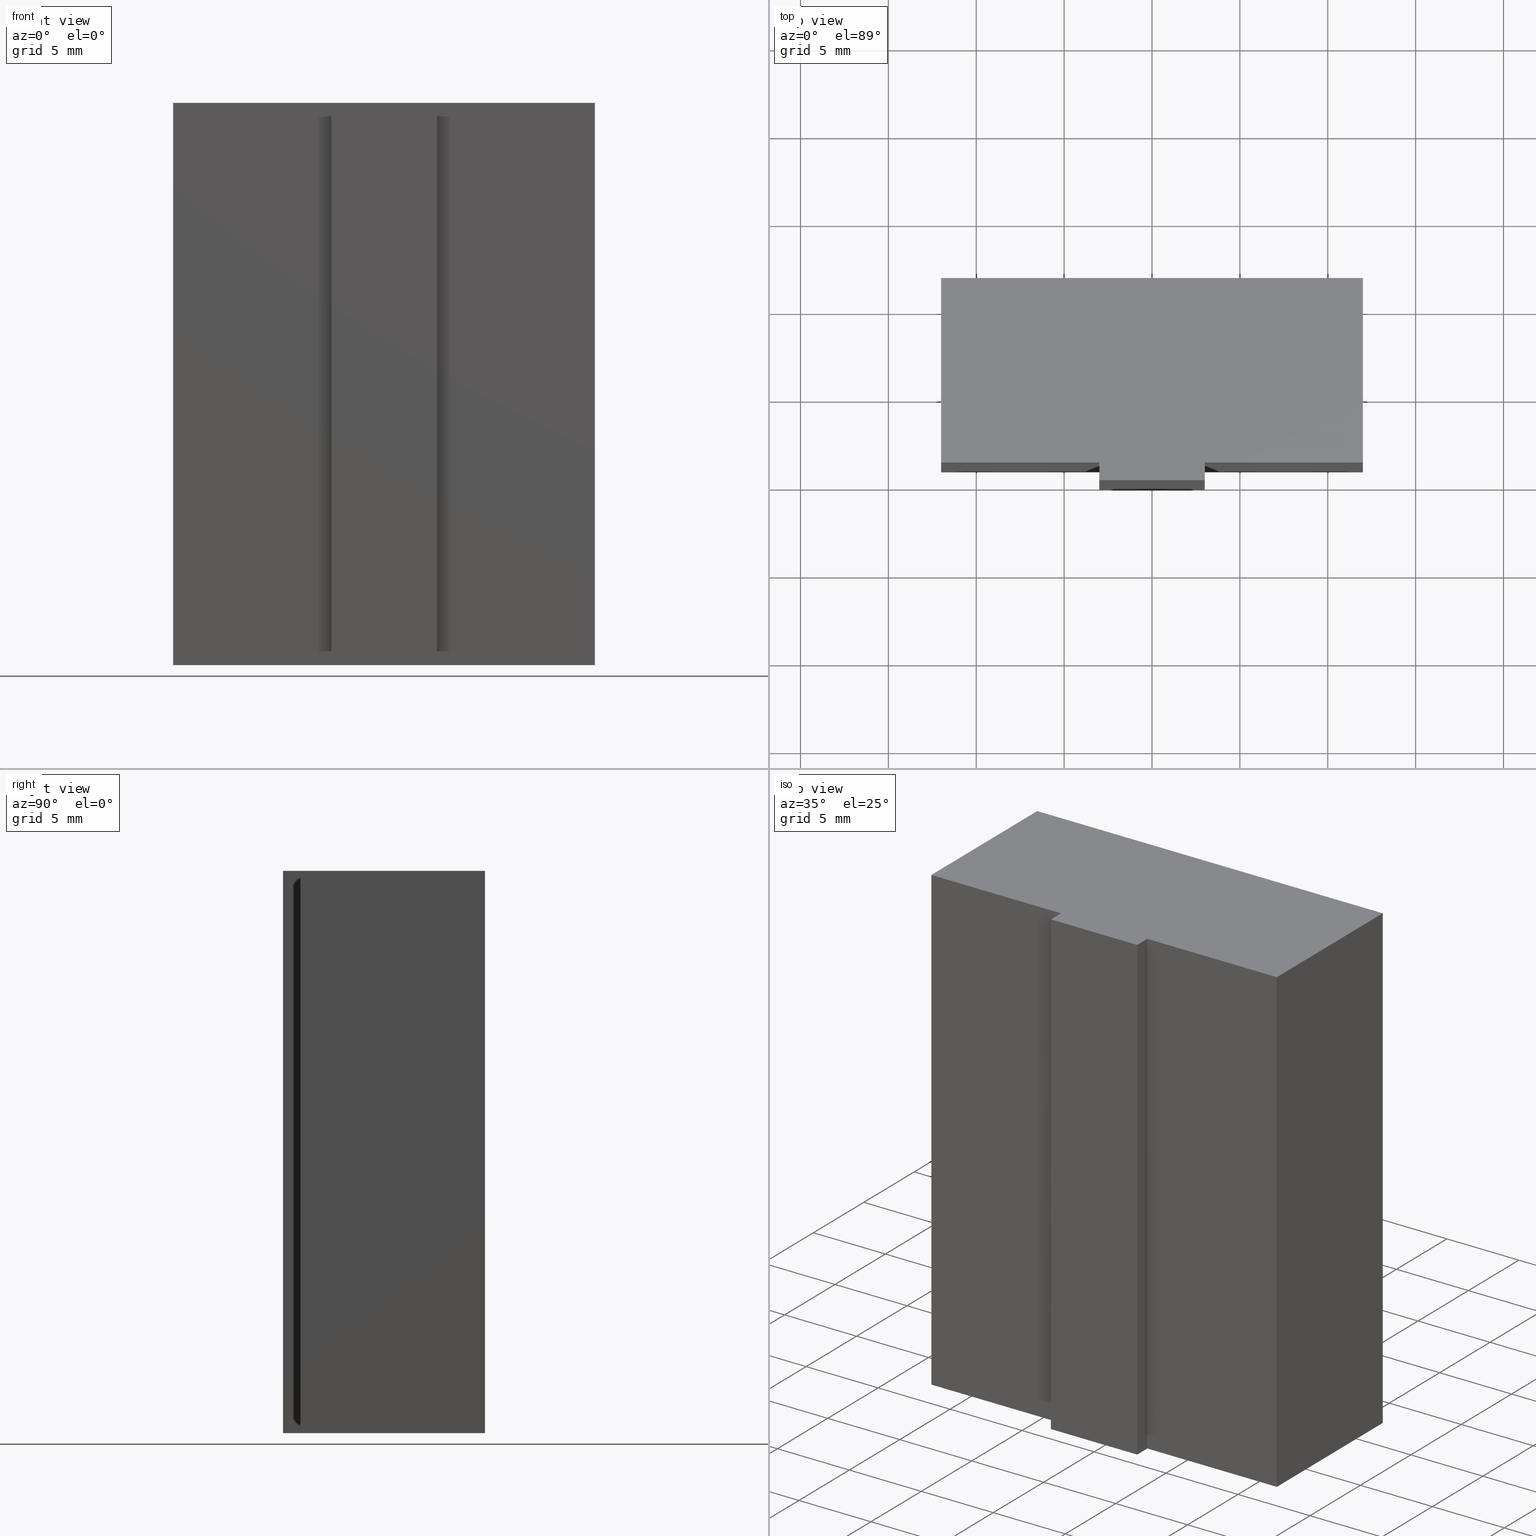
[diagram: canonical four-view strip — front | top / right | iso, engineering-drawing reading convention]
A machine part, canonical four-view strip (front | top / right | iso — engineering-drawing reading convention). The complete STEP part file that produces these views, byte-faithful:
ISO-10303-21;
HEADER;
/* Generated by software containing ST-Developer
 * from STEP Tools, Inc. (www.steptools.com) 
 */

FILE_DESCRIPTION(
/* description */ (''),
/* implementation_level */ '2;1');

FILE_NAME(
/* name */ 'E_3_01_12_19_00_WKZ-0138.stp',
/* time_stamp */ '2025-11-24T11:53:48+01:00',
/* author */ ('d.fischer'),
/* organization */ (''),
/* preprocessor_version */ 'ST-DEVELOPER v20',
/* originating_system */ 'Autodesk Inventor 2025',
/* authorisation */ '0 mm^3');

FILE_SCHEMA (('AUTOMOTIVE_DESIGN { 1 0 10303 214 3 1 1 }'));
ENDSEC;

DATA;
#10=MECHANICAL_DESIGN_GEOMETRIC_PRESENTATION_REPRESENTATION('',(#35,#36,
#37),#654);
#11=ITEM_DEFINED_TRANSFORMATION($,$,#413,#446);
#12=ITEM_DEFINED_TRANSFORMATION($,$,#432,#447);
#13=ITEM_DEFINED_TRANSFORMATION($,$,#432,#448);
#14=(
REPRESENTATION_RELATIONSHIP($,$,#669,#668)
REPRESENTATION_RELATIONSHIP_WITH_TRANSFORMATION(#11)
SHAPE_REPRESENTATION_RELATIONSHIP()
);
#15=(
REPRESENTATION_RELATIONSHIP($,$,#670,#668)
REPRESENTATION_RELATIONSHIP_WITH_TRANSFORMATION(#12)
SHAPE_REPRESENTATION_RELATIONSHIP()
);
#16=(
REPRESENTATION_RELATIONSHIP($,$,#670,#668)
REPRESENTATION_RELATIONSHIP_WITH_TRANSFORMATION(#13)
SHAPE_REPRESENTATION_RELATIONSHIP()
);
#17=CONTEXT_DEPENDENT_SHAPE_REPRESENTATION(#14,#665);
#18=CONTEXT_DEPENDENT_SHAPE_REPRESENTATION(#15,#666);
#19=CONTEXT_DEPENDENT_SHAPE_REPRESENTATION(#16,#667);
#20=NEXT_ASSEMBLY_USAGE_OCCURRENCE('E_3_01_12_19_00_WKZ-0138-Teil1:1',
'E_3_01_12_19_00_WKZ-0138-Teil1:1','E_3_01_12_19_00_WKZ-0138-Teil1:1',#672,
#673,'E_3_01_12_19_00_WKZ-0138-Teil1:1');
#21=NEXT_ASSEMBLY_USAGE_OCCURRENCE('E_3_01_12_19_00_WKZ-0138-Teil2:1',
'E_3_01_12_19_00_WKZ-0138-Teil2:1','E_3_01_12_19_00_WKZ-0138-Teil2:1',#672,
#674,'E_3_01_12_19_00_WKZ-0138-Teil2:1');
#22=NEXT_ASSEMBLY_USAGE_OCCURRENCE('E_3_01_12_19_00_WKZ-0138-Teil2:2',
'E_3_01_12_19_00_WKZ-0138-Teil2:2','E_3_01_12_19_00_WKZ-0138-Teil2:2',#672,
#674,'E_3_01_12_19_00_WKZ-0138-Teil2:2');
#23=CONICAL_SURFACE('',#433,1.796,0.785398163397449);
#24=CONICAL_SURFACE('',#441,1.796,0.785398163397448);
#25=SHAPE_REPRESENTATION_RELATIONSHIP('SRR','None',#669,#27);
#26=SHAPE_REPRESENTATION_RELATIONSHIP('SRR','None',#670,#28);
#27=ADVANCED_BREP_SHAPE_REPRESENTATION('',(#29),#652);
#28=ADVANCED_BREP_SHAPE_REPRESENTATION('',(#30),#653);
#29=MANIFOLD_SOLID_BREP('Volumenk\X\F6rper1',#341);
#30=MANIFOLD_SOLID_BREP('Volumenk\X\F6rper1',#342);
#31=FACE_BOUND('',#83,.T.);
#32=FACE_BOUND('',#84,.T.);
#33=FACE_BOUND('',#91,.T.);
#34=FACE_BOUND('',#94,.T.);
#35=STYLED_ITEM('',(#370),#327);
#36=STYLED_ITEM('',(#369),#29);
#37=STYLED_ITEM('',(#371),#30);
#38=PLANE('',#417);
#39=PLANE('',#421);
#40=PLANE('',#422);
#41=PLANE('',#423);
#42=PLANE('',#424);
#43=PLANE('',#425);
#44=PLANE('',#426);
#45=PLANE('',#427);
#46=PLANE('',#428);
#47=PLANE('',#429);
#48=PLANE('',#430);
#49=PLANE('',#431);
#50=PLANE('',#439);
#51=PLANE('',#443);
#52=FACE_OUTER_BOUND('',#72,.T.);
#53=FACE_OUTER_BOUND('',#73,.T.);
#54=FACE_OUTER_BOUND('',#74,.T.);
#55=FACE_OUTER_BOUND('',#75,.T.);
#56=FACE_OUTER_BOUND('',#76,.T.);
#57=FACE_OUTER_BOUND('',#77,.T.);
#58=FACE_OUTER_BOUND('',#78,.T.);
#59=FACE_OUTER_BOUND('',#79,.T.);
#60=FACE_OUTER_BOUND('',#80,.T.);
#61=FACE_OUTER_BOUND('',#81,.T.);
#62=FACE_OUTER_BOUND('',#82,.T.);
#63=FACE_OUTER_BOUND('',#85,.T.);
#64=FACE_OUTER_BOUND('',#86,.T.);
#65=FACE_OUTER_BOUND('',#87,.T.);
#66=FACE_OUTER_BOUND('',#88,.T.);
#67=FACE_OUTER_BOUND('',#89,.T.);
#68=FACE_OUTER_BOUND('',#90,.T.);
#69=FACE_OUTER_BOUND('',#92,.T.);
#70=FACE_OUTER_BOUND('',#93,.T.);
#71=FACE_OUTER_BOUND('',#95,.T.);
#72=EDGE_LOOP('',(#235,#236,#237,#238));
#73=EDGE_LOOP('',(#239));
#74=EDGE_LOOP('',(#240,#241,#242,#243));
#75=EDGE_LOOP('',(#244));
#76=EDGE_LOOP('',(#245,#246,#247,#248,#249,#250,#251,#252));
#77=EDGE_LOOP('',(#253,#254,#255,#256));
#78=EDGE_LOOP('',(#257,#258,#259,#260));
#79=EDGE_LOOP('',(#261,#262,#263,#264));
#80=EDGE_LOOP('',(#265,#266,#267,#268));
#81=EDGE_LOOP('',(#269,#270,#271,#272));
#82=EDGE_LOOP('',(#273,#274,#275,#276));
#83=EDGE_LOOP('',(#277));
#84=EDGE_LOOP('',(#278));
#85=EDGE_LOOP('',(#279,#280,#281,#282));
#86=EDGE_LOOP('',(#283,#284,#285,#286));
#87=EDGE_LOOP('',(#287,#288,#289,#290,#291,#292,#293,#294));
#88=EDGE_LOOP('',(#295,#296,#297,#298));
#89=EDGE_LOOP('',(#299,#300,#301,#302,#303));
#90=EDGE_LOOP('',(#304));
#91=EDGE_LOOP('',(#305));
#92=EDGE_LOOP('',(#306,#307,#308,#309,#310));
#93=EDGE_LOOP('',(#311));
#94=EDGE_LOOP('',(#312));
#95=EDGE_LOOP('',(#313,#314,#315,#316));
#96=LINE('',#559,#126);
#97=LINE('',#566,#127);
#98=LINE('',#572,#128);
#99=LINE('',#574,#129);
#100=LINE('',#576,#130);
#101=LINE('',#578,#131);
#102=LINE('',#580,#132);
#103=LINE('',#582,#133);
#104=LINE('',#584,#134);
#105=LINE('',#585,#135);
#106=LINE('',#589,#136);
#107=LINE('',#590,#137);
#108=LINE('',#591,#138);
#109=LINE('',#594,#139);
#110=LINE('',#595,#140);
#111=LINE('',#598,#141);
#112=LINE('',#599,#142);
#113=LINE('',#602,#143);
#114=LINE('',#603,#144);
#115=LINE('',#606,#145);
#116=LINE('',#607,#146);
#117=LINE('',#610,#147);
#118=LINE('',#611,#148);
#119=LINE('',#614,#149);
#120=LINE('',#615,#150);
#121=LINE('',#617,#151);
#122=LINE('',#624,#152);
#123=LINE('',#631,#153);
#124=LINE('',#638,#154);
#125=LINE('',#643,#155);
#126=VECTOR('',#457,2.9);
#127=VECTOR('',#466,2.9);
#128=VECTOR('',#473,10.);
#129=VECTOR('',#474,10.);
#130=VECTOR('',#475,10.);
#131=VECTOR('',#476,10.);
#132=VECTOR('',#477,10.);
#133=VECTOR('',#478,10.);
#134=VECTOR('',#479,10.);
#135=VECTOR('',#480,10.);
#136=VECTOR('',#483,10.);
#137=VECTOR('',#484,10.);
#138=VECTOR('',#485,10.);
#139=VECTOR('',#488,10.);
#140=VECTOR('',#489,10.);
#141=VECTOR('',#492,10.);
#142=VECTOR('',#493,10.);
#143=VECTOR('',#496,10.);
#144=VECTOR('',#497,10.);
#145=VECTOR('',#500,10.);
#146=VECTOR('',#501,10.);
#147=VECTOR('',#504,10.);
#148=VECTOR('',#505,10.);
#149=VECTOR('',#508,10.);
#150=VECTOR('',#509,10.);
#151=VECTOR('',#512,10.);
#152=VECTOR('',#521,1.796);
#153=VECTOR('',#530,1.621);
#154=VECTOR('',#539,1.796);
#155=VECTOR('',#546,2.9);
#156=CIRCLE('',#415,2.9);
#157=CIRCLE('',#416,2.9);
#158=CIRCLE('',#419,2.9);
#159=CIRCLE('',#420,2.9);
#160=CIRCLE('',#434,1.971);
#161=CIRCLE('',#435,1.621);
#162=CIRCLE('',#437,1.621);
#163=CIRCLE('',#438,1.621);
#164=CIRCLE('',#440,2.9);
#165=CIRCLE('',#442,1.971);
#166=CIRCLE('',#444,2.9);
#167=VERTEX_POINT('',#556);
#168=VERTEX_POINT('',#558);
#169=VERTEX_POINT('',#563);
#170=VERTEX_POINT('',#565);
#171=VERTEX_POINT('',#570);
#172=VERTEX_POINT('',#571);
#173=VERTEX_POINT('',#573);
#174=VERTEX_POINT('',#575);
#175=VERTEX_POINT('',#577);
#176=VERTEX_POINT('',#579);
#177=VERTEX_POINT('',#581);
#178=VERTEX_POINT('',#583);
#179=VERTEX_POINT('',#587);
#180=VERTEX_POINT('',#588);
#181=VERTEX_POINT('',#593);
#182=VERTEX_POINT('',#597);
#183=VERTEX_POINT('',#601);
#184=VERTEX_POINT('',#605);
#185=VERTEX_POINT('',#609);
#186=VERTEX_POINT('',#613);
#187=VERTEX_POINT('',#621);
#188=VERTEX_POINT('',#623);
#189=VERTEX_POINT('',#627);
#190=VERTEX_POINT('',#628);
#191=VERTEX_POINT('',#633);
#192=VERTEX_POINT('',#636);
#193=VERTEX_POINT('',#640);
#194=EDGE_CURVE('',#167,#167,#156,.T.);
#195=EDGE_CURVE('',#167,#168,#96,.T.);
#196=EDGE_CURVE('',#168,#168,#157,.T.);
#197=EDGE_CURVE('',#169,#169,#158,.T.);
#198=EDGE_CURVE('',#169,#170,#97,.T.);
#199=EDGE_CURVE('',#170,#170,#159,.T.);
#200=EDGE_CURVE('',#171,#172,#98,.T.);
#201=EDGE_CURVE('',#173,#171,#99,.T.);
#202=EDGE_CURVE('',#174,#173,#100,.T.);
#203=EDGE_CURVE('',#175,#174,#101,.T.);
#204=EDGE_CURVE('',#176,#175,#102,.T.);
#205=EDGE_CURVE('',#177,#176,#103,.T.);
#206=EDGE_CURVE('',#178,#177,#104,.T.);
#207=EDGE_CURVE('',#172,#178,#105,.T.);
#208=EDGE_CURVE('',#179,#180,#106,.T.);
#209=EDGE_CURVE('',#180,#174,#107,.T.);
#210=EDGE_CURVE('',#179,#173,#108,.T.);
#211=EDGE_CURVE('',#180,#181,#109,.T.);
#212=EDGE_CURVE('',#181,#175,#110,.T.);
#213=EDGE_CURVE('',#181,#182,#111,.T.);
#214=EDGE_CURVE('',#182,#176,#112,.T.);
#215=EDGE_CURVE('',#182,#183,#113,.T.);
#216=EDGE_CURVE('',#183,#177,#114,.T.);
#217=EDGE_CURVE('',#183,#184,#115,.T.);
#218=EDGE_CURVE('',#184,#178,#116,.T.);
#219=EDGE_CURVE('',#184,#185,#117,.T.);
#220=EDGE_CURVE('',#185,#172,#118,.T.);
#221=EDGE_CURVE('',#185,#186,#119,.T.);
#222=EDGE_CURVE('',#171,#186,#120,.T.);
#223=EDGE_CURVE('',#186,#179,#121,.T.);
#224=EDGE_CURVE('',#187,#187,#160,.T.);
#225=EDGE_CURVE('',#187,#188,#122,.T.);
#226=EDGE_CURVE('',#188,#188,#161,.T.);
#227=EDGE_CURVE('',#189,#190,#162,.T.);
#228=EDGE_CURVE('',#190,#189,#163,.T.);
#229=EDGE_CURVE('',#190,#188,#123,.T.);
#230=EDGE_CURVE('',#191,#191,#164,.T.);
#231=EDGE_CURVE('',#192,#192,#165,.T.);
#232=EDGE_CURVE('',#192,#189,#124,.T.);
#233=EDGE_CURVE('',#193,#193,#166,.T.);
#234=EDGE_CURVE('',#193,#191,#125,.T.);
#235=ORIENTED_EDGE('',*,*,#194,.F.);
#236=ORIENTED_EDGE('',*,*,#195,.T.);
#237=ORIENTED_EDGE('',*,*,#196,.F.);
#238=ORIENTED_EDGE('',*,*,#195,.F.);
#239=ORIENTED_EDGE('',*,*,#196,.T.);
#240=ORIENTED_EDGE('',*,*,#197,.F.);
#241=ORIENTED_EDGE('',*,*,#198,.T.);
#242=ORIENTED_EDGE('',*,*,#199,.F.);
#243=ORIENTED_EDGE('',*,*,#198,.F.);
#244=ORIENTED_EDGE('',*,*,#199,.T.);
#245=ORIENTED_EDGE('',*,*,#200,.F.);
#246=ORIENTED_EDGE('',*,*,#201,.F.);
#247=ORIENTED_EDGE('',*,*,#202,.F.);
#248=ORIENTED_EDGE('',*,*,#203,.F.);
#249=ORIENTED_EDGE('',*,*,#204,.F.);
#250=ORIENTED_EDGE('',*,*,#205,.F.);
#251=ORIENTED_EDGE('',*,*,#206,.F.);
#252=ORIENTED_EDGE('',*,*,#207,.F.);
#253=ORIENTED_EDGE('',*,*,#208,.T.);
#254=ORIENTED_EDGE('',*,*,#209,.T.);
#255=ORIENTED_EDGE('',*,*,#202,.T.);
#256=ORIENTED_EDGE('',*,*,#210,.F.);
#257=ORIENTED_EDGE('',*,*,#211,.T.);
#258=ORIENTED_EDGE('',*,*,#212,.T.);
#259=ORIENTED_EDGE('',*,*,#203,.T.);
#260=ORIENTED_EDGE('',*,*,#209,.F.);
#261=ORIENTED_EDGE('',*,*,#213,.T.);
#262=ORIENTED_EDGE('',*,*,#214,.T.);
#263=ORIENTED_EDGE('',*,*,#204,.T.);
#264=ORIENTED_EDGE('',*,*,#212,.F.);
#265=ORIENTED_EDGE('',*,*,#215,.T.);
#266=ORIENTED_EDGE('',*,*,#216,.T.);
#267=ORIENTED_EDGE('',*,*,#205,.T.);
#268=ORIENTED_EDGE('',*,*,#214,.F.);
#269=ORIENTED_EDGE('',*,*,#217,.T.);
#270=ORIENTED_EDGE('',*,*,#218,.T.);
#271=ORIENTED_EDGE('',*,*,#206,.T.);
#272=ORIENTED_EDGE('',*,*,#216,.F.);
#273=ORIENTED_EDGE('',*,*,#219,.T.);
#274=ORIENTED_EDGE('',*,*,#220,.T.);
#275=ORIENTED_EDGE('',*,*,#207,.T.);
#276=ORIENTED_EDGE('',*,*,#218,.F.);
#277=ORIENTED_EDGE('',*,*,#194,.T.);
#278=ORIENTED_EDGE('',*,*,#197,.T.);
#279=ORIENTED_EDGE('',*,*,#221,.T.);
#280=ORIENTED_EDGE('',*,*,#222,.F.);
#281=ORIENTED_EDGE('',*,*,#200,.T.);
#282=ORIENTED_EDGE('',*,*,#220,.F.);
#283=ORIENTED_EDGE('',*,*,#223,.T.);
#284=ORIENTED_EDGE('',*,*,#210,.T.);
#285=ORIENTED_EDGE('',*,*,#201,.T.);
#286=ORIENTED_EDGE('',*,*,#222,.T.);
#287=ORIENTED_EDGE('',*,*,#208,.F.);
#288=ORIENTED_EDGE('',*,*,#223,.F.);
#289=ORIENTED_EDGE('',*,*,#221,.F.);
#290=ORIENTED_EDGE('',*,*,#219,.F.);
#291=ORIENTED_EDGE('',*,*,#217,.F.);
#292=ORIENTED_EDGE('',*,*,#215,.F.);
#293=ORIENTED_EDGE('',*,*,#213,.F.);
#294=ORIENTED_EDGE('',*,*,#211,.F.);
#295=ORIENTED_EDGE('',*,*,#224,.T.);
#296=ORIENTED_EDGE('',*,*,#225,.T.);
#297=ORIENTED_EDGE('',*,*,#226,.T.);
#298=ORIENTED_EDGE('',*,*,#225,.F.);
#299=ORIENTED_EDGE('',*,*,#227,.F.);
#300=ORIENTED_EDGE('',*,*,#228,.F.);
#301=ORIENTED_EDGE('',*,*,#229,.T.);
#302=ORIENTED_EDGE('',*,*,#226,.F.);
#303=ORIENTED_EDGE('',*,*,#229,.F.);
#304=ORIENTED_EDGE('',*,*,#230,.T.);
#305=ORIENTED_EDGE('',*,*,#224,.F.);
#306=ORIENTED_EDGE('',*,*,#231,.T.);
#307=ORIENTED_EDGE('',*,*,#232,.T.);
#308=ORIENTED_EDGE('',*,*,#227,.T.);
#309=ORIENTED_EDGE('',*,*,#228,.T.);
#310=ORIENTED_EDGE('',*,*,#232,.F.);
#311=ORIENTED_EDGE('',*,*,#233,.F.);
#312=ORIENTED_EDGE('',*,*,#231,.F.);
#313=ORIENTED_EDGE('',*,*,#233,.T.);
#314=ORIENTED_EDGE('',*,*,#234,.T.);
#315=ORIENTED_EDGE('',*,*,#230,.F.);
#316=ORIENTED_EDGE('',*,*,#234,.F.);
#317=CYLINDRICAL_SURFACE('',#414,2.9);
#318=CYLINDRICAL_SURFACE('',#418,2.9);
#319=CYLINDRICAL_SURFACE('',#436,1.621);
#320=CYLINDRICAL_SURFACE('',#445,2.9);
#321=ADVANCED_FACE('',(#52),#317,.F.);
#322=ADVANCED_FACE('',(#53),#38,.F.);
#323=ADVANCED_FACE('',(#54),#318,.F.);
#324=ADVANCED_FACE('',(#55),#39,.F.);
#325=ADVANCED_FACE('',(#56),#40,.F.);
#326=ADVANCED_FACE('',(#57),#41,.T.);
#327=ADVANCED_FACE('',(#58),#42,.T.);
#328=ADVANCED_FACE('',(#59),#43,.T.);
#329=ADVANCED_FACE('',(#60),#44,.T.);
#330=ADVANCED_FACE('',(#61),#45,.T.);
#331=ADVANCED_FACE('',(#62,#31,#32),#46,.T.);
#332=ADVANCED_FACE('',(#63),#47,.T.);
#333=ADVANCED_FACE('',(#64),#48,.T.);
#334=ADVANCED_FACE('',(#65),#49,.T.);
#335=ADVANCED_FACE('',(#66),#23,.F.);
#336=ADVANCED_FACE('',(#67),#319,.F.);
#337=ADVANCED_FACE('',(#68,#33),#50,.T.);
#338=ADVANCED_FACE('',(#69),#24,.F.);
#339=ADVANCED_FACE('',(#70,#34),#51,.F.);
#340=ADVANCED_FACE('',(#71),#320,.T.);
#341=CLOSED_SHELL('',(#321,#322,#323,#324,#325,#326,#327,#328,#329,#330,
#331,#332,#333,#334));
#342=CLOSED_SHELL('',(#335,#336,#337,#338,#339,#340));
#343=DERIVED_UNIT_ELEMENT(#348,1.);
#344=DERIVED_UNIT_ELEMENT(#656,-3.);
#345=DERIVED_UNIT_ELEMENT(#348,1.);
#346=DERIVED_UNIT_ELEMENT(#656,-3.);
#347=DIMENSIONAL_EXPONENTS(0.,1.,0.,0.,0.,0.,0.);
#348=(
CONVERSION_BASED_UNIT('gram',#350)
MASS_UNIT()
NAMED_UNIT(#347)
);
#349=(
MASS_UNIT()
NAMED_UNIT(*)
SI_UNIT(.KILO.,.GRAM.)
);
#350=MASS_MEASURE_WITH_UNIT(MASS_MEASURE(0.001),#349);
#351=DERIVED_UNIT((#343,#344));
#352=DERIVED_UNIT((#345,#346));
#353=MEASURE_REPRESENTATION_ITEM('density measure',
POSITIVE_RATIO_MEASURE(8.03),#351);
#354=MEASURE_REPRESENTATION_ITEM('density measure',
POSITIVE_RATIO_MEASURE(8.03),#352);
#355=PROPERTY_DEFINITION_REPRESENTATION(#365,#359);
#356=PROPERTY_DEFINITION_REPRESENTATION(#366,#360);
#357=PROPERTY_DEFINITION_REPRESENTATION(#367,#361);
#358=PROPERTY_DEFINITION_REPRESENTATION(#368,#362);
#359=REPRESENTATION('material name',(#363),#652);
#360=REPRESENTATION('density',(#353),#652);
#361=REPRESENTATION('material name',(#364),#653);
#362=REPRESENTATION('density',(#354),#653);
#363=DESCRIPTIVE_REPRESENTATION_ITEM('1.4301','1.4301');
#364=DESCRIPTIVE_REPRESENTATION_ITEM('1.4301','1.4301');
#365=PROPERTY_DEFINITION('material property','material name',#673);
#366=PROPERTY_DEFINITION('material property','density of part',#673);
#367=PROPERTY_DEFINITION('material property','material name',#674);
#368=PROPERTY_DEFINITION('material property','density of part',#674);
#369=PRESENTATION_STYLE_ASSIGNMENT((#372));
#370=PRESENTATION_STYLE_ASSIGNMENT((#373));
#371=PRESENTATION_STYLE_ASSIGNMENT((#374));
#372=SURFACE_STYLE_USAGE(.BOTH.,#379);
#373=SURFACE_STYLE_USAGE(.BOTH.,#380);
#374=SURFACE_STYLE_USAGE(.BOTH.,#381);
#375=SURFACE_STYLE_RENDERING_WITH_PROPERTIES($,#391,(#377));
#376=SURFACE_STYLE_RENDERING_WITH_PROPERTIES($,#393,(#378));
#377=SURFACE_STYLE_TRANSPARENT(0.);
#378=SURFACE_STYLE_TRANSPARENT(0.);
#379=SURFACE_SIDE_STYLE('',(#382,#375));
#380=SURFACE_SIDE_STYLE('',(#383));
#381=SURFACE_SIDE_STYLE('',(#384,#376));
#382=SURFACE_STYLE_FILL_AREA(#385);
#383=SURFACE_STYLE_FILL_AREA(#386);
#384=SURFACE_STYLE_FILL_AREA(#387);
#385=FILL_AREA_STYLE('',(#388));
#386=FILL_AREA_STYLE('',(#389));
#387=FILL_AREA_STYLE('',(#390));
#388=FILL_AREA_STYLE_COLOUR('',#391);
#389=FILL_AREA_STYLE_COLOUR('',#392);
#390=FILL_AREA_STYLE_COLOUR('',#393);
#391=COLOUR_RGB('',1.,1.,1.);
#392=COLOUR_RGB('',0.325490196078431,0.325490196078431,0.325490196078431);
#393=COLOUR_RGB('',0.796078431372549,0.603921568627451,0.231372549019608);
#394=DATE_TIME_ROLE('creation_date');
#395=DATE_TIME_ROLE('creation_date');
#396=DATE_TIME_ROLE('creation_date');
#397=APPLIED_DATE_AND_TIME_ASSIGNMENT(#400,#394,(#672));
#398=APPLIED_DATE_AND_TIME_ASSIGNMENT(#401,#395,(#673));
#399=APPLIED_DATE_AND_TIME_ASSIGNMENT(#402,#396,(#674));
#400=DATE_AND_TIME(#403,#406);
#401=DATE_AND_TIME(#404,#407);
#402=DATE_AND_TIME(#405,#408);
#403=CALENDAR_DATE(2012,21,11);
#404=CALENDAR_DATE(2011,26,10);
#405=CALENDAR_DATE(2011,27,10);
#406=LOCAL_TIME(0,0,0.,#409);
#407=LOCAL_TIME(0,0,0.,#410);
#408=LOCAL_TIME(0,0,0.,#411);
#409=COORDINATED_UNIVERSAL_TIME_OFFSET(0,0,.BEHIND.);
#410=COORDINATED_UNIVERSAL_TIME_OFFSET(0,0,.BEHIND.);
#411=COORDINATED_UNIVERSAL_TIME_OFFSET(0,0,.BEHIND.);
#412=AXIS2_PLACEMENT_3D('',#553,#449,#450);
#413=AXIS2_PLACEMENT_3D('',#554,#451,#452);
#414=AXIS2_PLACEMENT_3D('',#555,#453,#454);
#415=AXIS2_PLACEMENT_3D('',#557,#455,#456);
#416=AXIS2_PLACEMENT_3D('',#560,#458,#459);
#417=AXIS2_PLACEMENT_3D('',#561,#460,#461);
#418=AXIS2_PLACEMENT_3D('',#562,#462,#463);
#419=AXIS2_PLACEMENT_3D('',#564,#464,#465);
#420=AXIS2_PLACEMENT_3D('',#567,#467,#468);
#421=AXIS2_PLACEMENT_3D('',#568,#469,#470);
#422=AXIS2_PLACEMENT_3D('',#569,#471,#472);
#423=AXIS2_PLACEMENT_3D('',#586,#481,#482);
#424=AXIS2_PLACEMENT_3D('',#592,#486,#487);
#425=AXIS2_PLACEMENT_3D('',#596,#490,#491);
#426=AXIS2_PLACEMENT_3D('',#600,#494,#495);
#427=AXIS2_PLACEMENT_3D('',#604,#498,#499);
#428=AXIS2_PLACEMENT_3D('',#608,#502,#503);
#429=AXIS2_PLACEMENT_3D('',#612,#506,#507);
#430=AXIS2_PLACEMENT_3D('',#616,#510,#511);
#431=AXIS2_PLACEMENT_3D('',#618,#513,#514);
#432=AXIS2_PLACEMENT_3D('',#619,#515,#516);
#433=AXIS2_PLACEMENT_3D('',#620,#517,#518);
#434=AXIS2_PLACEMENT_3D('',#622,#519,#520);
#435=AXIS2_PLACEMENT_3D('',#625,#522,#523);
#436=AXIS2_PLACEMENT_3D('',#626,#524,#525);
#437=AXIS2_PLACEMENT_3D('',#629,#526,#527);
#438=AXIS2_PLACEMENT_3D('',#630,#528,#529);
#439=AXIS2_PLACEMENT_3D('',#632,#531,#532);
#440=AXIS2_PLACEMENT_3D('',#634,#533,#534);
#441=AXIS2_PLACEMENT_3D('',#635,#535,#536);
#442=AXIS2_PLACEMENT_3D('',#637,#537,#538);
#443=AXIS2_PLACEMENT_3D('',#639,#540,#541);
#444=AXIS2_PLACEMENT_3D('',#641,#542,#543);
#445=AXIS2_PLACEMENT_3D('',#642,#544,#545);
#446=AXIS2_PLACEMENT_3D('',#644,#547,#548);
#447=AXIS2_PLACEMENT_3D('',#645,#549,#550);
#448=AXIS2_PLACEMENT_3D('',#646,#551,#552);
#449=DIRECTION('axis',(0.,0.,1.));
#450=DIRECTION('refdir',(1.,0.,0.));
#451=DIRECTION('axis',(0.,0.,1.));
#452=DIRECTION('refdir',(1.,0.,0.));
#453=DIRECTION('center_axis',(0.,-1.,0.));
#454=DIRECTION('ref_axis',(-1.,0.,0.));
#455=DIRECTION('center_axis',(0.,-1.,0.));
#456=DIRECTION('ref_axis',(-1.,0.,0.));
#457=DIRECTION('',(0.,-1.,0.));
#458=DIRECTION('center_axis',(0.,1.,0.));
#459=DIRECTION('ref_axis',(-1.,0.,0.));
#460=DIRECTION('center_axis',(0.,-1.,0.));
#461=DIRECTION('ref_axis',(0.,0.,-1.));
#462=DIRECTION('center_axis',(0.,-1.,0.));
#463=DIRECTION('ref_axis',(-1.,0.,0.));
#464=DIRECTION('center_axis',(0.,-1.,0.));
#465=DIRECTION('ref_axis',(-1.,0.,0.));
#466=DIRECTION('',(0.,-1.,0.));
#467=DIRECTION('center_axis',(0.,1.,0.));
#468=DIRECTION('ref_axis',(-1.,0.,0.));
#469=DIRECTION('center_axis',(0.,-1.,0.));
#470=DIRECTION('ref_axis',(0.,0.,-1.));
#471=DIRECTION('center_axis',(0.,0.,1.));
#472=DIRECTION('ref_axis',(1.,0.,0.));
#473=DIRECTION('',(0.,1.,0.));
#474=DIRECTION('',(1.,-7.70988211545247E-17,0.));
#475=DIRECTION('',(0.,1.,0.));
#476=DIRECTION('',(1.,0.,0.));
#477=DIRECTION('',(0.,-1.,0.));
#478=DIRECTION('',(1.,7.70988211545247E-17,0.));
#479=DIRECTION('',(0.,-1.,0.));
#480=DIRECTION('',(-1.,0.,0.));
#481=DIRECTION('center_axis',(1.,0.,0.));
#482=DIRECTION('ref_axis',(0.,0.,-1.));
#483=DIRECTION('',(0.,-1.,0.));
#484=DIRECTION('',(0.,0.,-1.));
#485=DIRECTION('',(0.,0.,-1.));
#486=DIRECTION('center_axis',(0.,-1.,0.));
#487=DIRECTION('ref_axis',(0.,0.,-1.));
#488=DIRECTION('',(-1.,0.,0.));
#489=DIRECTION('',(0.,0.,-1.));
#490=DIRECTION('center_axis',(-1.,0.,0.));
#491=DIRECTION('ref_axis',(0.,0.,1.));
#492=DIRECTION('',(0.,1.,0.));
#493=DIRECTION('',(0.,0.,-1.));
#494=DIRECTION('center_axis',(7.70988211545247E-17,-1.,0.));
#495=DIRECTION('ref_axis',(0.,0.,-1.));
#496=DIRECTION('',(-1.,-7.70988211545247E-17,0.));
#497=DIRECTION('',(0.,0.,-1.));
#498=DIRECTION('center_axis',(-1.,0.,0.));
#499=DIRECTION('ref_axis',(0.,0.,1.));
#500=DIRECTION('',(0.,1.,0.));
#501=DIRECTION('',(0.,0.,-1.));
#502=DIRECTION('center_axis',(0.,1.,0.));
#503=DIRECTION('ref_axis',(0.,0.,1.));
#504=DIRECTION('',(1.,0.,0.));
#505=DIRECTION('',(0.,0.,-1.));
#506=DIRECTION('center_axis',(1.,0.,0.));
#507=DIRECTION('ref_axis',(0.,0.,-1.));
#508=DIRECTION('',(0.,-1.,0.));
#509=DIRECTION('',(0.,0.,1.));
#510=DIRECTION('center_axis',(-7.70988211545247E-17,-1.,0.));
#511=DIRECTION('ref_axis',(0.,0.,-1.));
#512=DIRECTION('',(-1.,7.70988211545247E-17,0.));
#513=DIRECTION('center_axis',(0.,0.,1.));
#514=DIRECTION('ref_axis',(1.,0.,0.));
#515=DIRECTION('axis',(0.,0.,1.));
#516=DIRECTION('refdir',(1.,0.,0.));
#517=DIRECTION('center_axis',(0.,0.,-1.));
#518=DIRECTION('ref_axis',(1.,0.,0.));
#519=DIRECTION('center_axis',(0.,0.,-1.));
#520=DIRECTION('ref_axis',(1.,0.,0.));
#521=DIRECTION('',(0.707106781186548,-8.65956056235493E-17,0.707106781186547));
#522=DIRECTION('center_axis',(0.,0.,1.));
#523=DIRECTION('ref_axis',(1.,0.,0.));
#524=DIRECTION('center_axis',(0.,0.,1.));
#525=DIRECTION('ref_axis',(1.,0.,0.));
#526=DIRECTION('center_axis',(0.,0.,-1.));
#527=DIRECTION('ref_axis',(-1.,0.,0.));
#528=DIRECTION('center_axis',(0.,0.,-1.));
#529=DIRECTION('ref_axis',(-1.,0.,0.));
#530=DIRECTION('',(0.,0.,-1.));
#531=DIRECTION('center_axis',(0.,0.,-1.));
#532=DIRECTION('ref_axis',(-1.,0.,0.));
#533=DIRECTION('center_axis',(0.,0.,-1.));
#534=DIRECTION('ref_axis',(-1.,0.,0.));
#535=DIRECTION('center_axis',(0.,0.,1.));
#536=DIRECTION('ref_axis',(-1.,0.,0.));
#537=DIRECTION('center_axis',(0.,0.,1.));
#538=DIRECTION('ref_axis',(-1.,0.,0.));
#539=DIRECTION('',(-0.707106781186547,-8.65956056235493E-17,-0.707106781186548));
#540=DIRECTION('center_axis',(0.,0.,-1.));
#541=DIRECTION('ref_axis',(-1.,0.,0.));
#542=DIRECTION('center_axis',(0.,0.,-1.));
#543=DIRECTION('ref_axis',(-1.,0.,0.));
#544=DIRECTION('center_axis',(0.,0.,1.));
#545=DIRECTION('ref_axis',(-1.,0.,0.));
#546=DIRECTION('',(0.,0.,-1.));
#547=DIRECTION('',(0.,0.,1.));
#548=DIRECTION('',(1.,0.,0.));
#549=DIRECTION('',(0.,-1.,0.));
#550=DIRECTION('',(1.,0.,0.));
#551=DIRECTION('',(0.,-1.,0.));
#552=DIRECTION('',(1.,0.,0.));
#553=CARTESIAN_POINT('',(0.,0.,0.));
#554=CARTESIAN_POINT('',(0.,0.,0.));
#555=CARTESIAN_POINT('Origin',(0.,11.5,-9.));
#556=CARTESIAN_POINT('',(2.9,11.5,-9.));
#557=CARTESIAN_POINT('Origin',(0.,11.5,-9.));
#558=CARTESIAN_POINT('',(2.9,5.5,-9.));
#559=CARTESIAN_POINT('',(2.9,11.5,-9.));
#560=CARTESIAN_POINT('Origin',(0.,5.5,-9.));
#561=CARTESIAN_POINT('Origin',(0.,5.5,-9.));
#562=CARTESIAN_POINT('Origin',(0.,11.5,9.));
#563=CARTESIAN_POINT('',(2.9,11.5,9.));
#564=CARTESIAN_POINT('Origin',(0.,11.5,9.));
#565=CARTESIAN_POINT('',(2.9,5.5,9.));
#566=CARTESIAN_POINT('',(2.9,11.5,9.));
#567=CARTESIAN_POINT('Origin',(0.,5.5,9.));
#568=CARTESIAN_POINT('Origin',(0.,5.5,9.));
#569=CARTESIAN_POINT('Origin',(5.55111512312578E-16,6.00352112676056,-16.));
#570=CARTESIAN_POINT('',(12.,1.,-16.));
#571=CARTESIAN_POINT('',(12.,11.5,-16.));
#572=CARTESIAN_POINT('',(12.,11.5,-16.));
#573=CARTESIAN_POINT('',(3.,1.,-16.));
#574=CARTESIAN_POINT('',(12.,1.,-16.));
#575=CARTESIAN_POINT('',(3.,0.,-16.));
#576=CARTESIAN_POINT('',(3.,1.,-16.));
#577=CARTESIAN_POINT('',(-3.,0.,-16.));
#578=CARTESIAN_POINT('',(3.,0.,-16.));
#579=CARTESIAN_POINT('',(-3.,1.,-16.));
#580=CARTESIAN_POINT('',(-3.,0.,-16.));
#581=CARTESIAN_POINT('',(-12.,1.,-16.));
#582=CARTESIAN_POINT('',(-3.,1.,-16.));
#583=CARTESIAN_POINT('',(-12.,11.5,-16.));
#584=CARTESIAN_POINT('',(-12.,1.,-16.));
#585=CARTESIAN_POINT('',(-12.,11.5,-16.));
#586=CARTESIAN_POINT('Origin',(3.,1.,0.));
#587=CARTESIAN_POINT('',(3.,1.,16.));
#588=CARTESIAN_POINT('',(3.,0.,16.));
#589=CARTESIAN_POINT('',(3.,1.,16.));
#590=CARTESIAN_POINT('',(3.,0.,0.));
#591=CARTESIAN_POINT('',(3.,1.,0.));
#592=CARTESIAN_POINT('Origin',(3.,0.,0.));
#593=CARTESIAN_POINT('',(-3.,0.,16.));
#594=CARTESIAN_POINT('',(3.,0.,16.));
#595=CARTESIAN_POINT('',(-3.,0.,0.));
#596=CARTESIAN_POINT('Origin',(-3.,0.,0.));
#597=CARTESIAN_POINT('',(-3.,1.,16.));
#598=CARTESIAN_POINT('',(-3.,0.,16.));
#599=CARTESIAN_POINT('',(-3.,1.,0.));
#600=CARTESIAN_POINT('Origin',(-3.,1.,0.));
#601=CARTESIAN_POINT('',(-12.,1.,16.));
#602=CARTESIAN_POINT('',(-3.,1.,16.));
#603=CARTESIAN_POINT('',(-12.,1.,0.));
#604=CARTESIAN_POINT('Origin',(-12.,1.,0.));
#605=CARTESIAN_POINT('',(-12.,11.5,16.));
#606=CARTESIAN_POINT('',(-12.,1.,16.));
#607=CARTESIAN_POINT('',(-12.,11.5,0.));
#608=CARTESIAN_POINT('Origin',(-12.,11.5,0.));
#609=CARTESIAN_POINT('',(12.,11.5,16.));
#610=CARTESIAN_POINT('',(-12.,11.5,16.));
#611=CARTESIAN_POINT('',(12.,11.5,0.));
#612=CARTESIAN_POINT('Origin',(12.,11.5,0.));
#613=CARTESIAN_POINT('',(12.,1.,16.));
#614=CARTESIAN_POINT('',(12.,11.5,16.));
#615=CARTESIAN_POINT('',(12.,1.,0.));
#616=CARTESIAN_POINT('Origin',(12.,1.,0.));
#617=CARTESIAN_POINT('',(12.,1.,16.));
#618=CARTESIAN_POINT('Origin',(5.3776427755281E-16,6.00352112676056,16.));
#619=CARTESIAN_POINT('',(0.,0.,0.));
#620=CARTESIAN_POINT('Origin',(0.,0.,0.175));
#621=CARTESIAN_POINT('',(-1.971,2.41377884111943E-16,0.));
#622=CARTESIAN_POINT('Origin',(0.,0.,0.));
#623=CARTESIAN_POINT('',(-1.621,-1.98515246141786E-16,0.35));
#624=CARTESIAN_POINT('',(-1.796,2.19946565126865E-16,0.175));
#625=CARTESIAN_POINT('Origin',(0.,0.,0.35));
#626=CARTESIAN_POINT('Origin',(0.,0.,-4.16267681273));
#627=CARTESIAN_POINT('',(1.621,-1.98515246141786E-16,5.65));
#628=CARTESIAN_POINT('',(-1.621,-1.98515246141786E-16,5.65));
#629=CARTESIAN_POINT('Origin',(0.,0.,5.65));
#630=CARTESIAN_POINT('Origin',(0.,0.,5.65));
#631=CARTESIAN_POINT('',(-1.621,-1.98515246141786E-16,-4.16267681273));
#632=CARTESIAN_POINT('Origin',(0.,0.,0.));
#633=CARTESIAN_POINT('',(2.9,3.55147571752732E-16,0.));
#634=CARTESIAN_POINT('Origin',(0.,0.,0.));
#635=CARTESIAN_POINT('Origin',(0.,0.,5.825));
#636=CARTESIAN_POINT('',(1.971,2.41377884111943E-16,6.));
#637=CARTESIAN_POINT('Origin',(0.,0.,6.));
#638=CARTESIAN_POINT('',(1.796,2.19946565126865E-16,5.825));
#639=CARTESIAN_POINT('Origin',(0.,0.,6.));
#640=CARTESIAN_POINT('',(2.9,3.55147571752732E-16,6.));
#641=CARTESIAN_POINT('Origin',(0.,0.,6.));
#642=CARTESIAN_POINT('Origin',(0.,0.,0.));
#643=CARTESIAN_POINT('',(2.9,3.55147571752732E-16,0.));
#644=CARTESIAN_POINT('',(0.,0.,0.));
#645=CARTESIAN_POINT('',(0.,11.5,-9.));
#646=CARTESIAN_POINT('',(0.,11.5,9.));
#647=UNCERTAINTY_MEASURE_WITH_UNIT(LENGTH_MEASURE(0.01),#655,
'DISTANCE_ACCURACY_VALUE',
'Maximum model space distance between geometric entities at asserted c
onnectivities');
#648=UNCERTAINTY_MEASURE_WITH_UNIT(LENGTH_MEASURE(0.01),#655,
'DISTANCE_ACCURACY_VALUE',
'Maximum model space distance between geometric entities at asserted c
onnectivities');
#649=UNCERTAINTY_MEASURE_WITH_UNIT(LENGTH_MEASURE(0.01),#655,
'DISTANCE_ACCURACY_VALUE',
'Maximum model space distance between geometric entities at asserted c
onnectivities');
#650=UNCERTAINTY_MEASURE_WITH_UNIT(LENGTH_MEASURE(0.01),#655,
'DISTANCE_ACCURACY_VALUE',
'Maximum model space distance between geometric entities at asserted c
onnectivities');
#651=(
GEOMETRIC_REPRESENTATION_CONTEXT(3)
GLOBAL_UNCERTAINTY_ASSIGNED_CONTEXT((#647))
GLOBAL_UNIT_ASSIGNED_CONTEXT((#655,#657,#658))
REPRESENTATION_CONTEXT('','3D')
);
#652=(
GEOMETRIC_REPRESENTATION_CONTEXT(3)
GLOBAL_UNCERTAINTY_ASSIGNED_CONTEXT((#648))
GLOBAL_UNIT_ASSIGNED_CONTEXT((#655,#657,#658))
REPRESENTATION_CONTEXT('','3D')
);
#653=(
GEOMETRIC_REPRESENTATION_CONTEXT(3)
GLOBAL_UNCERTAINTY_ASSIGNED_CONTEXT((#649))
GLOBAL_UNIT_ASSIGNED_CONTEXT((#655,#657,#658))
REPRESENTATION_CONTEXT('','3D')
);
#654=(
GEOMETRIC_REPRESENTATION_CONTEXT(3)
GLOBAL_UNCERTAINTY_ASSIGNED_CONTEXT((#650))
GLOBAL_UNIT_ASSIGNED_CONTEXT((#655,#657,#658))
REPRESENTATION_CONTEXT('','3D')
);
#655=(
LENGTH_UNIT()
NAMED_UNIT(*)
SI_UNIT(.MILLI.,.METRE.)
);
#656=(
LENGTH_UNIT()
NAMED_UNIT(*)
SI_UNIT(.CENTI.,.METRE.)
);
#657=(
NAMED_UNIT(*)
PLANE_ANGLE_UNIT()
SI_UNIT($,.RADIAN.)
);
#658=(
NAMED_UNIT(*)
SI_UNIT($,.STERADIAN.)
SOLID_ANGLE_UNIT()
);
#659=SHAPE_DEFINITION_REPRESENTATION(#662,#668);
#660=SHAPE_DEFINITION_REPRESENTATION(#663,#669);
#661=SHAPE_DEFINITION_REPRESENTATION(#664,#670);
#662=PRODUCT_DEFINITION_SHAPE('',$,#672);
#663=PRODUCT_DEFINITION_SHAPE('',$,#673);
#664=PRODUCT_DEFINITION_SHAPE('',$,#674);
#665=PRODUCT_DEFINITION_SHAPE($,$,#20);
#666=PRODUCT_DEFINITION_SHAPE($,$,#21);
#667=PRODUCT_DEFINITION_SHAPE($,$,#22);
#668=SHAPE_REPRESENTATION('',(#412,#446,#447,#448),#651);
#669=SHAPE_REPRESENTATION('',(#413),#652);
#670=SHAPE_REPRESENTATION('',(#432),#653);
#671=PRODUCT_DEFINITION_CONTEXT('part definition',#682,'design');
#672=PRODUCT_DEFINITION('WKZ-0138','E_3_01_12_19_00_WKZ-0138',#675,#671);
#673=PRODUCT_DEFINITION('WKZ-0138_1','E_3_01_12_19_00_WKZ-0138-Teil1',#676,
#671);
#674=PRODUCT_DEFINITION('E_3_12_138_00_WKZ-0138-02',
'E_3_01_12_19_00_WKZ-0138-Teil2',#677,#671);
#675=PRODUCT_DEFINITION_FORMATION('',$,#684);
#676=PRODUCT_DEFINITION_FORMATION('',$,#685);
#677=PRODUCT_DEFINITION_FORMATION('',$,#686);
#678=PRODUCT_RELATED_PRODUCT_CATEGORY('E_3_01_12_19_00_WKZ-0138',
'E_3_01_12_19_00_WKZ-0138',(#684));
#679=PRODUCT_RELATED_PRODUCT_CATEGORY('E_3_01_12_19_00_WKZ-0138-Teil1',
'E_3_01_12_19_00_WKZ-0138-Teil1',(#685));
#680=PRODUCT_RELATED_PRODUCT_CATEGORY('E_3_01_12_19_00_WKZ-0138-Teil2',
'E_3_01_12_19_00_WKZ-0138-Teil2',(#686));
#681=APPLICATION_PROTOCOL_DEFINITION('international standard',
'automotive_design',2009,#682);
#682=APPLICATION_CONTEXT(
'Core Data for Automotive Mechanical Design Process');
#683=PRODUCT_CONTEXT('part definition',#682,'mechanical');
#684=PRODUCT('WKZ-0138','E_3_01_12_19_00_WKZ-0138',$,(#683));
#685=PRODUCT('WKZ-0138_1','E_3_01_12_19_00_WKZ-0138-Teil1',$,(#683));
#686=PRODUCT('E_3_12_138_00_WKZ-0138-02',
'E_3_01_12_19_00_WKZ-0138-Teil2',$,(#683));
ENDSEC;
END-ISO-10303-21;
